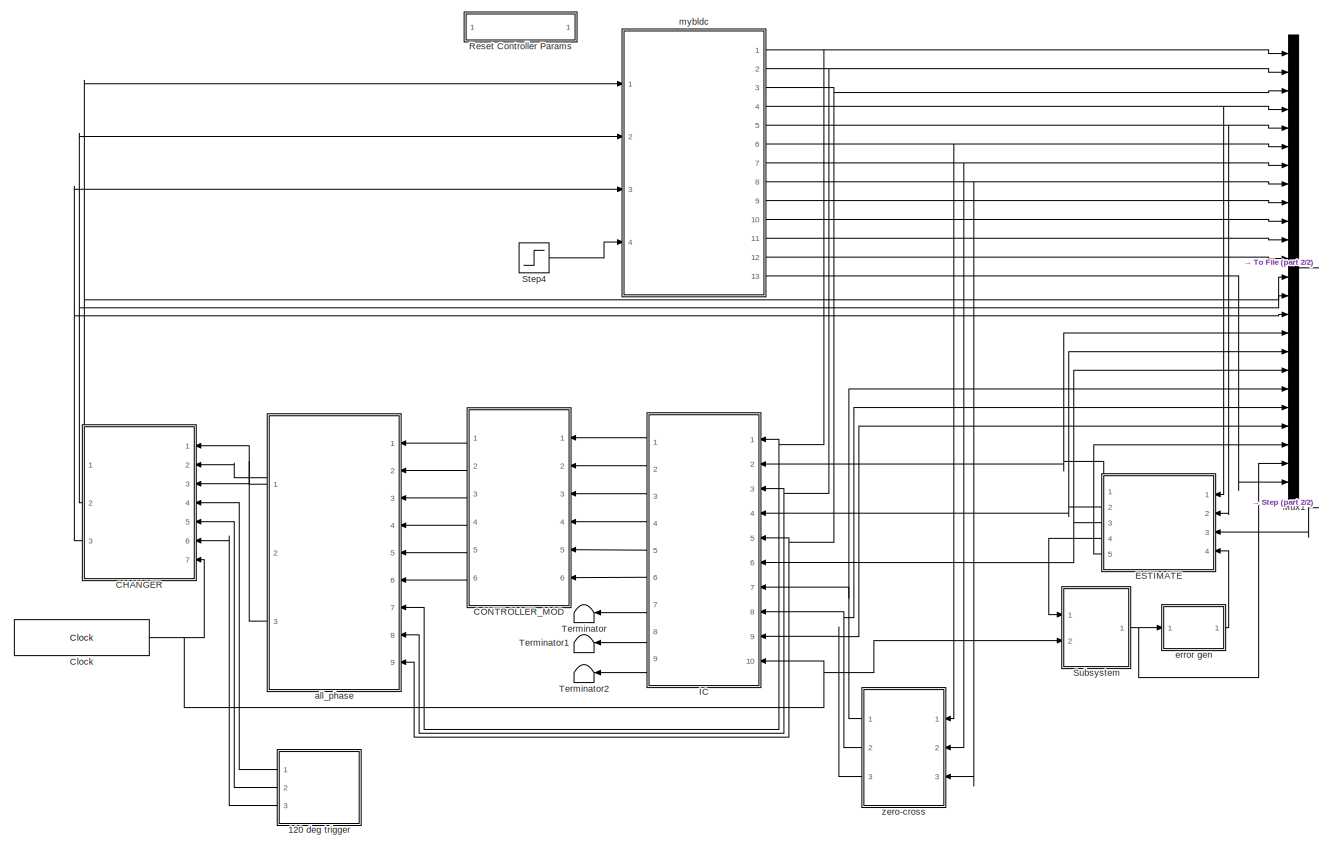
[diagram: root canvas - part 1/2, most of the canvas]
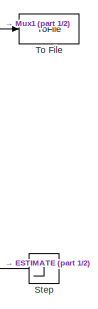
[diagram: root canvas - part 2/2, middle right region]
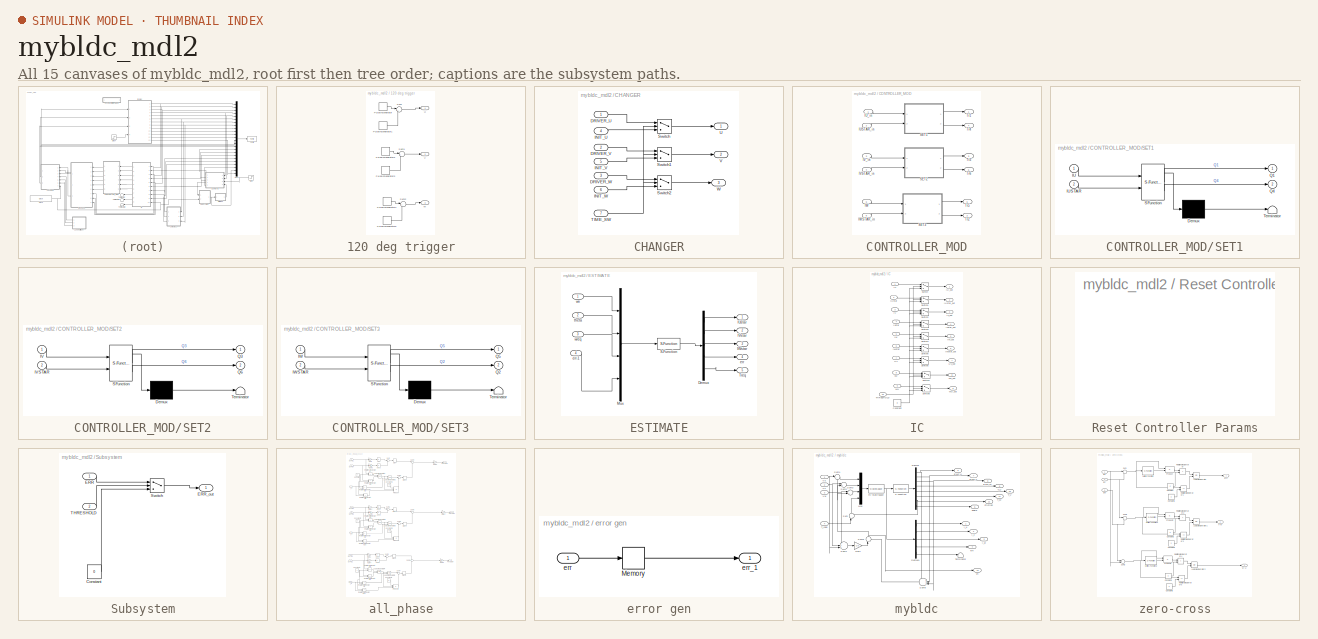
[diagram: thumbnail index - all 15 canvases of the model, root first then tree order]
MODEL mybldc_mdl2
KIND model
CONFIG AbsTol = auto
CONFIG FixedStep = auto
CONFIG MaxStep = auto
CONFIG MinStep = auto
CONFIG RelTol = 1e-3
CONFIG Solver = ode113
CONFIG SolverMode = Auto
CONFIG StartTime = 0.0
CONFIG StopTime = .13
BLOCK [SubSystem] 120 deg trigger
  MaskCallbackString = |
  MaskDescription = This block is used to ramp up the motor.
  MaskEnableString = on,on
  MaskIconFrame = on
  MaskIconOpaque = on
  MaskIconRotate = none
  MaskIconUnits = autoscale
  MaskPromptString = Time period|Excitation Voltage
  MaskStyleString = edit,edit
  MaskToolTipString = on,on
  MaskTunableValueString = on,on
  MaskValueString = 1/50|160
  MaskVarAliasString = ,
  MaskVariables = T=@1;V=@2;
  MaskVisibilityString = on,on
  Ports = [0, 3]
  TreatAsAtomicUnit = off
BLOCK [DiscretePulseGenerator] 120 deg trigger/Pulse\nGenerator
  Amplitude = V
  Period = T
  PhaseDelay = T/3
  PulseType = Time based
  PulseWidth = 200/3
BLOCK [DiscretePulseGenerator] 120 deg trigger/Pulse\nGenerator1
  Amplitude = -2*V
  Period = 2*T
  PhaseDelay = -2*T/3
  PulseType = Time based
  PulseWidth = 100/3
BLOCK [DiscretePulseGenerator] 120 deg trigger/Pulse\nGenerator2
  Amplitude = V
  Period = T
  PulseType = Time based
  PulseWidth = 200/3
BLOCK [DiscretePulseGenerator] 120 deg trigger/Pulse\nGenerator3
  Amplitude = -2*V
  Period = 2*T
  PulseType = Time based
  PulseWidth = 100/3
BLOCK [DiscretePulseGenerator] 120 deg trigger/Pulse\nGenerator4
  Amplitude = V
  Period = T
  PhaseDelay = -T/3
  PulseType = Time based
  PulseWidth = 200/3
BLOCK [DiscretePulseGenerator] 120 deg trigger/Pulse\nGenerator5
  Amplitude = -2*V
  Period = 2*T
  PhaseDelay = 2*T/3
  PulseType = Time based
  PulseWidth = 100/3
BLOCK [Sum] 120 deg trigger/Sum
  IconShape = round
  Inputs = |++
  Ports = [2, 1]
BLOCK [Sum] 120 deg trigger/Sum1
  IconShape = round
  Inputs = |++
  Ports = [2, 1]
BLOCK [Sum] 120 deg trigger/Sum2
  IconShape = round
  Inputs = |++
  Ports = [2, 1]
BLOCK [Outport] 120 deg trigger/U
BLOCK [Outport] 120 deg trigger/V
  Port = 2
BLOCK [Outport] 120 deg trigger/W
  Port = 3
BLOCK [SubSystem] CHANGER
  MaskDescription = This block is used to switch the bldc operation from an open loop to an initial one.\nFill in the amount of time bldc is to be run under open loop condition in the field \n'Threshold time'
  MaskEnableString = on
  MaskHelp = The controller by itself cannot start the motor. This is because the controller operation\nis heavily dependent upon the Back EMF (BEMF) voltages. Initially, the rotor is at\nstandstill, and the back emf voltages have not built up. Thus, the controller does not\nhave any synchronizing information. \n\nTherefore, for some inital time called the 'threshold time' , the motor is 'blindly' ramped \nup....<+324ch>
  MaskIconFrame = on
  MaskIconOpaque = on
  MaskIconRotate = none
  MaskIconUnits = autoscale
  MaskPromptString = Threshold time
  MaskStyleString = edit
  MaskToolTipString = on
  MaskTunableValueString = on
  MaskValueString = 400e-6
  MaskVariables = T=@1;
  MaskVisibilityString = on
  Ports = [7, 3]
  TreatAsAtomicUnit = off
BLOCK [Inport] CHANGER/DRIVER_U
BLOCK [Inport] CHANGER/DRIVER_V
  Port = 2
BLOCK [Inport] CHANGER/DRIVER_W
  Port = 3
BLOCK [Inport] CHANGER/INIT_U
  Port = 4
BLOCK [Inport] CHANGER/INIT_V
  Port = 5
BLOCK [Inport] CHANGER/INIT_W
  Port = 6
BLOCK [Switch] CHANGER/Switch
  Criteria = u2 > Threshold
  InputSameDT = off
  Threshold = T
BLOCK [Switch] CHANGER/Switch1
  Criteria = u2 > Threshold
  InputSameDT = off
  Threshold = T
BLOCK [Switch] CHANGER/Switch2
  Criteria = u2 > Threshold
  InputSameDT = off
  Threshold = T
BLOCK [Inport] CHANGER/TIME_SW
  Port = 7
BLOCK [Outport] CHANGER/U
BLOCK [Outport] CHANGER/V
  Port = 2
BLOCK [Outport] CHANGER/W
  Port = 3
BLOCK [SubSystem] CONTROLLER_MOD
  Ports = [6, 6]
  TreatAsAtomicUnit = off
BLOCK [Inport] CONTROLLER_MOD/IUSTAR_in
  Port = 2
BLOCK [Inport] CONTROLLER_MOD/IU_in
BLOCK [Inport] CONTROLLER_MOD/IVSTAR_in
  Port = 4
BLOCK [Inport] CONTROLLER_MOD/IV_in
  Port = 3
BLOCK [Inport] CONTROLLER_MOD/IW
  Port = 5
BLOCK [Inport] CONTROLLER_MOD/IWSTAR_in
  Port = 6
BLOCK [SubSystem] CONTROLLER_MOD/SET1
  MaskDescription = Stateflow diagram
  MaskDisplay = plot(sf('Private','sfblk','xIcon'),sf('Private','sfblk','yIcon'));text(0.5,0,sf('Private', 'sfblk', 'tIcon'),'HorizontalAl','Center','VerticalAl','Bottom');
  MaskIconFrame = off
  MaskIconOpaque = off
  MaskIconRotate = none
  MaskIconUnits = autoscale
  MaskSelfModifiable = on
  MaskType = Stateflow
  Ports = [2, 2]
  TreatAsAtomicUnit = off
BLOCK [Demux] CONTROLLER_MOD/SET1/ Demux 
  Outputs = 1
  Ports = [1, 1]
BLOCK [S-Function] CONTROLLER_MOD/SET1/ SFunction 
  FunctionName = sf_sfun
  PortCounts = [2 3]
  Ports = [2, 3]
  Tag = Stateflow S-Function mybldc_mdl2 1
BLOCK [Terminator] CONTROLLER_MOD/SET1/ Terminator 
BLOCK [Inport] CONTROLLER_MOD/SET1/IU
  PortDimensions = 1
BLOCK [Inport] CONTROLLER_MOD/SET1/IUSTAR
  Port = 2
  PortDimensions = 1
BLOCK [Outport] CONTROLLER_MOD/SET1/Q1
BLOCK [Outport] CONTROLLER_MOD/SET1/Q4
  Port = 2
BLOCK [SubSystem] CONTROLLER_MOD/SET2
  MaskDescription = Stateflow diagram
  MaskDisplay = plot(sf('Private','sfblk','xIcon'),sf('Private','sfblk','yIcon'));text(0.5,0,sf('Private', 'sfblk', 'tIcon'),'HorizontalAl','Center','VerticalAl','Bottom');
  MaskIconFrame = off
  MaskIconOpaque = off
  MaskIconRotate = none
  MaskIconUnits = autoscale
  MaskSelfModifiable = on
  MaskType = Stateflow
  Ports = [2, 2]
  TreatAsAtomicUnit = off
BLOCK [Demux] CONTROLLER_MOD/SET2/ Demux 
  Outputs = 1
  Ports = [1, 1]
BLOCK [S-Function] CONTROLLER_MOD/SET2/ SFunction 
  FunctionName = sf_sfun
  PortCounts = [2 3]
  Ports = [2, 3]
  Tag = Stateflow S-Function mybldc_mdl2 2
BLOCK [Terminator] CONTROLLER_MOD/SET2/ Terminator 
BLOCK [Inport] CONTROLLER_MOD/SET2/IV
  PortDimensions = 1
BLOCK [Inport] CONTROLLER_MOD/SET2/IVSTAR
  Port = 2
  PortDimensions = 1
BLOCK [Outport] CONTROLLER_MOD/SET2/Q3
BLOCK [Outport] CONTROLLER_MOD/SET2/Q6
  Port = 2
BLOCK [SubSystem] CONTROLLER_MOD/SET3
  MaskDescription = Stateflow diagram
  MaskDisplay = plot(sf('Private','sfblk','xIcon'),sf('Private','sfblk','yIcon'));text(0.5,0,sf('Private', 'sfblk', 'tIcon'),'HorizontalAl','Center','VerticalAl','Bottom');
  MaskIconFrame = off
  MaskIconOpaque = off
  MaskIconRotate = none
  MaskIconUnits = autoscale
  MaskSelfModifiable = on
  MaskType = Stateflow
  Ports = [2, 2]
  TreatAsAtomicUnit = off
BLOCK [Demux] CONTROLLER_MOD/SET3/ Demux 
  Outputs = 1
  Ports = [1, 1]
BLOCK [S-Function] CONTROLLER_MOD/SET3/ SFunction 
  FunctionName = sf_sfun
  PortCounts = [2 3]
  Ports = [2, 3]
  Tag = Stateflow S-Function mybldc_mdl2 3
BLOCK [Terminator] CONTROLLER_MOD/SET3/ Terminator 
BLOCK [Inport] CONTROLLER_MOD/SET3/IW
  PortDimensions = 1
BLOCK [Inport] CONTROLLER_MOD/SET3/IWSTAR
  Port = 2
  PortDimensions = 1
BLOCK [Outport] CONTROLLER_MOD/SET3/Q2
  Port = 2
BLOCK [Outport] CONTROLLER_MOD/SET3/Q5
BLOCK [Outport] CONTROLLER_MOD/Tr1
BLOCK [Outport] CONTROLLER_MOD/Tr2
  Port = 2
BLOCK [Outport] CONTROLLER_MOD/Tr3
  Port = 3
BLOCK [Outport] CONTROLLER_MOD/Tr4
  Port = 4
BLOCK [Outport] CONTROLLER_MOD/Tr5
  Port = 5
BLOCK [Outport] CONTROLLER_MOD/Tr6
  Port = 6
BLOCK [Clock] Clock
  Decimation = 1
  DisplayTime = on
BLOCK [SubSystem] ESTIMATE
  MaskCallbackString = ||||||||||
  MaskDescription = This block calculates the required calue of current in all the three phases depending upon the speed requirement\n\nFor good results, phase difference should be kept at 0
  MaskEnableString = on,on,on,on,on,on,on,on,on,on,on
  MaskHelp = The estimation block calculates the currents that should be flowing in the individual\nphases as per the speed command and/or the load torque requirements. For this a \nPID controller is used. A series of transformations is applied in the m file s fuction \n'calc_core.m' and then commands are calculated. A modified version of the Park's \nTransform is used. The signals are then fed to the controll...<+107ch>
  MaskIconFrame = on
  MaskIconOpaque = on
  MaskIconRotate = none
  MaskIconUnits = autoscale
  MaskPromptString = Number of turns per phase|Maximum value of magnetic field intensity|moment of inertia|viscous friction|Rotor radius|Rotor length|phase difference between current and torque|Proportionality constant|Integral constant|differential constant|rated base current
  MaskStyleString = edit,edit,edit,edit,edit,edit,edit,edit,edit,edit,edit
  MaskToolTipString = on,on,on,on,on,on,on,on,on,on,on
  MaskTunableValueString = on,on,on,on,on,on,on,on,on,on,on
  MaskValueString = 100|49/60|0.0002|0.002|0.02|0.03|0|50000|500000|5|34
  MaskVarAliasString = ,,,,,,,,,,
  MaskVariables = N=@1;BM=@2;J=@3;DF=@4;Rr=@5;Rl=@6;delta=@7;KP=@8;KI=@9;KD=@10;basecurr=@11;
  MaskVisibilityString = on,on,on,on,on,on,on,on,on,on,on
  Ports = [4, 5]
  TreatAsAtomicUnit = off
BLOCK [Demux] ESTIMATE/Demux
  Outputs = 5
  Ports = [1, 5]
BLOCK [Outport] ESTIMATE/IUstar
BLOCK [Outport] ESTIMATE/IVstar
  Port = 2
BLOCK [Outport] ESTIMATE/IWstar
  Port = 3
BLOCK [Mux] ESTIMATE/Mux
  DisplayOption = bar
  Ports = [4, 1]
BLOCK [S-Function] ESTIMATE/S-Function
  FunctionName = calc_core
  Parameters = J,DF,N,BM,Rr,Rl,delta,KP,KI,KD,basecurr
  Ports = [1, 1]
BLOCK [Outport] ESTIMATE/Treq
  Port = 5
BLOCK [Outport] ESTIMATE/err
  Port = 4
BLOCK [Inport] ESTIMATE/err-1
  Port = 4
BLOCK [Inport] ESTIMATE/theta
  Port = 2
BLOCK [Inport] ESTIMATE/wn
BLOCK [Inport] ESTIMATE/wreq
  Port = 3
BLOCK [SubSystem] IC
  MaskDescription = The block is just used to hold the FSM in CONTROLLER_MOD block to its\ninital states. The value in the field 'Threshold' determines how long the block \nwill keep the CONTROLLER_MOD block locked to its initial position.
  MaskEnableString = on
  MaskHelp = Intially, when the motor is being ramped to build up the required Back emf voltages,\nit is important that the FSMs in the CONTROLLER_MOD block do not leave their \ninitial states. Therefore, this block is used to keep the FSMs in the CONTROLLER_MOD \nblock locked into their initial states. The time for which this control is exercised is\ndetermined by the time value entered in 'Threshold' field.\...<+111ch>
  MaskIconFrame = on
  MaskIconOpaque = on
  MaskIconRotate = none
  MaskIconUnits = autoscale
  MaskPromptString = Threshold
  MaskStyleString = edit
  MaskToolTipString = on
  MaskTunableValueString = on
  MaskValueString = 400e-6
  MaskVariables = T=@1;
  MaskVisibilityString = on
  Ports = [10, 9]
  TreatAsAtomicUnit = off
BLOCK [Constant] IC/Constant
  Value = 0
BLOCK [Inport] IC/IU
BLOCK [Outport] IC/IU_out
BLOCK [Inport] IC/IUstar
  Port = 2
BLOCK [Outport] IC/IUstar_out
  Port = 2
BLOCK [Inport] IC/IV
  Port = 3
BLOCK [Outport] IC/IV_out
  Port = 3
BLOCK [Inport] IC/IVstar
  Port = 4
BLOCK [Outport] IC/IVstar_out
  Port = 4
BLOCK [Inport] IC/IW
  Port = 5
BLOCK [Outport] IC/IW_out
  Port = 5
BLOCK [Inport] IC/IWstar
  Port = 6
BLOCK [Outport] IC/IWstar_out
  Port = 6
BLOCK [Switch] IC/Switch
  InputSameDT = off
  Threshold = T
BLOCK [Switch] IC/Switch1
  InputSameDT = off
  Threshold = T
BLOCK [Switch] IC/Switch2
  InputSameDT = off
  Threshold = T
BLOCK [Switch] IC/Switch3
  InputSameDT = off
  Threshold = T
BLOCK [Switch] IC/Switch4
  InputSameDT = off
  Threshold = T
BLOCK [Switch] IC/Switch5
  InputSameDT = off
  Threshold = T
BLOCK [Switch] IC/Switch6
  InputSameDT = off
  Threshold = T
BLOCK [Switch] IC/Switch7
  InputSameDT = off
  Threshold = T
BLOCK [Switch] IC/Switch8
  InputSameDT = off
  Threshold = T
BLOCK [Inport] IC/THRESHOLD
  Port = 10
BLOCK [Inport] IC/UV
  Port = 7
BLOCK [Outport] IC/UV_out
  Port = 7
BLOCK [Inport] IC/VW
  Port = 8
BLOCK [Outport] IC/VW_out
  Port = 8
BLOCK [Inport] IC/WU
  Port = 9
BLOCK [Outport] IC/WU_out
  Port = 9
BLOCK [Mux] Mux1
  DisplayOption = bar
  Inputs = 24
  Ports = [24, 1]
BLOCK [SubSystem] Reset Controller Params
  MaskDisplay = disp('Reset Controller')
  MaskIconFrame = on
  MaskIconOpaque = on
  MaskIconRotate = none
  MaskIconUnits = autoscale
  OpenFcn = mybldc2([],[],[],'reset',find_system(get_param(gcs,'Handle'),'LookUnderMasks','all','Tag','PPC'));
  Ports = []
  TreatAsAtomicUnit = off
BLOCK [Step] Step
  After = 75
  SampleTime = 0
  Time = 0.01
BLOCK [Step] Step4
  After = 0
  SampleTime = 0
  Time = 0.05
BLOCK [SubSystem] Subsystem
  MaskEnableString = on
  MaskIconFrame = on
  MaskIconOpaque = on
  MaskIconRotate = none
  MaskIconUnits = autoscale
  MaskPromptString = Threshold
  MaskStyleString = edit
  MaskToolTipString = on
  MaskTunableValueString = on
  MaskValueString = 400e-6
  MaskVariables = T=@1;
  MaskVisibilityString = on
  Ports = [2, 1]
  TreatAsAtomicUnit = off
BLOCK [Constant] Subsystem/Constant
  Value = 0
BLOCK [Inport] Subsystem/ERR
BLOCK [Outport] Subsystem/ERR_out
BLOCK [Switch] Subsystem/Switch
  InputSameDT = off
  Threshold = T
BLOCK [Inport] Subsystem/THRESHOLD
  Port = 2
BLOCK [Terminator] Terminator
BLOCK [Terminator] Terminator1
BLOCK [Terminator] Terminator2
BLOCK [ToFile] To File
  Filename = result
  MatrixName = res
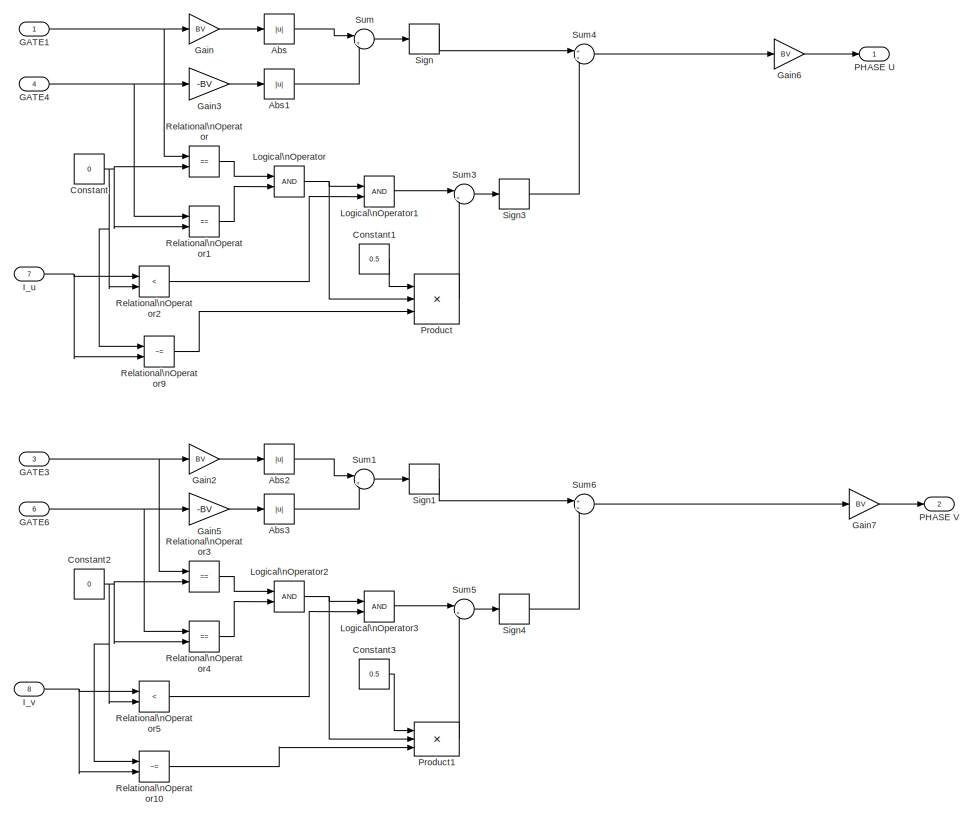
[diagram: all_phase - part 1/2, full width, middle band]
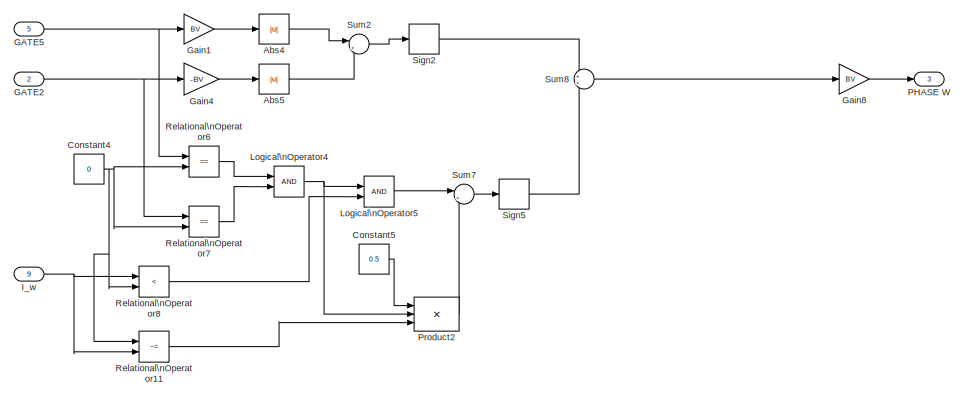
[diagram: all_phase - part 2/2, full width, bottom band]
BLOCK [SubSystem] all_phase
  MaskDescription = This is an inverter. Double click the block to enter the battery voltage
  MaskEnableString = on
  MaskHelp = The voltage source that is used is bipolar. That is if a value say 100 is entered then a split supply \nof +100 and -100 volts is assumed with respect to ground (zero volts)
  MaskIconFrame = on
  MaskIconOpaque = on
  MaskIconRotate = none
  MaskIconUnits = autoscale
  MaskPromptString = Battery voltage for excitation
  MaskStyleString = edit
  MaskToolTipString = on
  MaskTunableValueString = on
  MaskValueString = 160
  MaskVariables = BV=@1;
  MaskVisibilityString = on
  Ports = [9, 3]
  TreatAsAtomicUnit = off
BLOCK [Abs] all_phase/Abs
BLOCK [Abs] all_phase/Abs1
BLOCK [Abs] all_phase/Abs2
BLOCK [Abs] all_phase/Abs3
BLOCK [Abs] all_phase/Abs4
BLOCK [Abs] all_phase/Abs5
BLOCK [Constant] all_phase/Constant
  Value = 0
BLOCK [Constant] all_phase/Constant1
  Value = 0.5
BLOCK [Constant] all_phase/Constant2
  Value = 0
BLOCK [Constant] all_phase/Constant3
  Value = 0.5
BLOCK [Constant] all_phase/Constant4
  Value = 0
BLOCK [Constant] all_phase/Constant5
  Value = 0.5
BLOCK [Inport] all_phase/GATE1
BLOCK [Inport] all_phase/GATE2
  Port = 2
BLOCK [Inport] all_phase/GATE3
  Port = 3
BLOCK [Inport] all_phase/GATE4
  Port = 4
BLOCK [Inport] all_phase/GATE5
  Port = 5
BLOCK [Inport] all_phase/GATE6
  Port = 6
BLOCK [Gain] all_phase/Gain
  Gain = BV
BLOCK [Gain] all_phase/Gain1
  Gain = BV
BLOCK [Gain] all_phase/Gain2
  Gain = BV
BLOCK [Gain] all_phase/Gain3
  Gain = -BV
BLOCK [Gain] all_phase/Gain4
  Gain = -BV
BLOCK [Gain] all_phase/Gain5
  Gain = -BV
BLOCK [Gain] all_phase/Gain6
  Gain = BV
BLOCK [Gain] all_phase/Gain7
  Gain = BV
BLOCK [Gain] all_phase/Gain8
  Gain = BV
BLOCK [Inport] all_phase/I_u
  Port = 7
BLOCK [Inport] all_phase/I_v
  Port = 8
BLOCK [Inport] all_phase/I_w
  Port = 9
BLOCK [Logic] all_phase/Logical\nOperator
  AllPortsSameDT = off
  Ports = [2, 1]
BLOCK [Logic] all_phase/Logical\nOperator1
  AllPortsSameDT = off
  Ports = [2, 1]
BLOCK [Logic] all_phase/Logical\nOperator2
  AllPortsSameDT = off
  Ports = [2, 1]
BLOCK [Logic] all_phase/Logical\nOperator3
  AllPortsSameDT = off
  Ports = [2, 1]
BLOCK [Logic] all_phase/Logical\nOperator4
  AllPortsSameDT = off
  Ports = [2, 1]
BLOCK [Logic] all_phase/Logical\nOperator5
  AllPortsSameDT = off
  Ports = [2, 1]
BLOCK [Outport] all_phase/PHASE U
BLOCK [Outport] all_phase/PHASE V
  Port = 2
BLOCK [Outport] all_phase/PHASE W
  Port = 3
BLOCK [Product] all_phase/Product
  InputSameDT = off
  Inputs = 3
  Ports = [3, 1]
BLOCK [Product] all_phase/Product1
  InputSameDT = off
  Inputs = 3
  Ports = [3, 1]
BLOCK [Product] all_phase/Product2
  InputSameDT = off
  Inputs = 3
  Ports = [3, 1]
BLOCK [RelationalOperator] all_phase/Relational\nOperator
  InputSameDT = off
  Operator = ==
BLOCK [RelationalOperator] all_phase/Relational\nOperator1
  InputSameDT = off
  Operator = ==
BLOCK [RelationalOperator] all_phase/Relational\nOperator10
  InputSameDT = off
  Operator = ~=
BLOCK [RelationalOperator] all_phase/Relational\nOperator11
  InputSameDT = off
  Operator = ~=
BLOCK [RelationalOperator] all_phase/Relational\nOperator2
  InputSameDT = off
  Operator = <
BLOCK [RelationalOperator] all_phase/Relational\nOperator3
  InputSameDT = off
  Operator = ==
BLOCK [RelationalOperator] all_phase/Relational\nOperator4
  InputSameDT = off
  Operator = ==
BLOCK [RelationalOperator] all_phase/Relational\nOperator5
  InputSameDT = off
  Operator = <
BLOCK [RelationalOperator] all_phase/Relational\nOperator6
  InputSameDT = off
  Operator = ==
BLOCK [RelationalOperator] all_phase/Relational\nOperator7
  InputSameDT = off
  Operator = ==
BLOCK [RelationalOperator] all_phase/Relational\nOperator8
  InputSameDT = off
  Operator = <
BLOCK [RelationalOperator] all_phase/Relational\nOperator9
  InputSameDT = off
  Operator = ~=
BLOCK [Signum] all_phase/Sign
BLOCK [Signum] all_phase/Sign1
BLOCK [Signum] all_phase/Sign2
BLOCK [Signum] all_phase/Sign3
BLOCK [Signum] all_phase/Sign4
BLOCK [Signum] all_phase/Sign5
BLOCK [Sum] all_phase/Sum
  IconShape = round
  Inputs = |+-
  Ports = [2, 1]
BLOCK [Sum] all_phase/Sum1
  IconShape = round
  Inputs = |+-
  Ports = [2, 1]
BLOCK [Sum] all_phase/Sum2
  IconShape = round
  Inputs = |+-
  Ports = [2, 1]
BLOCK [Sum] all_phase/Sum3
  IconShape = round
  Inputs = |+-
  Ports = [2, 1]
BLOCK [Sum] all_phase/Sum4
  IconShape = round
  Ports = [2, 1]
BLOCK [Sum] all_phase/Sum5
  IconShape = round
  Inputs = |+-
  Ports = [2, 1]
BLOCK [Sum] all_phase/Sum6
  IconShape = round
  Ports = [2, 1]
BLOCK [Sum] all_phase/Sum7
  IconShape = round
  Inputs = |+-
  Ports = [2, 1]
BLOCK [Sum] all_phase/Sum8
  IconShape = round
  Ports = [2, 1]
BLOCK [SubSystem] error gen
  Ports = [1, 1]
  TreatAsAtomicUnit = off
BLOCK [Memory] error gen/Memory
  InheritSampleTime = on
BLOCK [Inport] error gen/err
BLOCK [Outport] error gen/err_1
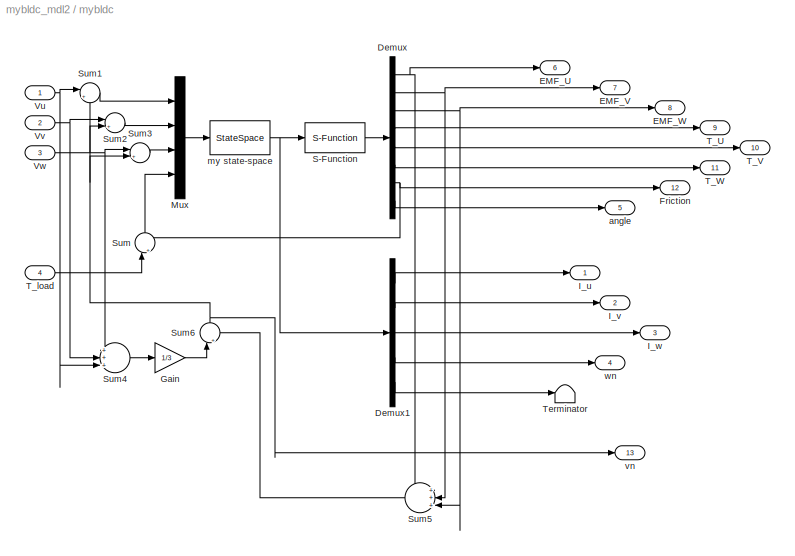
BLOCK [SubSystem] mybldc
  MaskIconFrame = on
  MaskIconOpaque = on
  MaskIconRotate = none
  MaskIconUnits = autoscale
  Ports = [4, 13]
  TreatAsAtomicUnit = off
BLOCK [Demux] mybldc/Demux
  Outputs = 8
  Ports = [1, 8]
BLOCK [Demux] mybldc/Demux1
  Outputs = 5
  Ports = [1, 5]
BLOCK [Outport] mybldc/EMF_U
  Port = 6
BLOCK [Outport] mybldc/EMF_V
  Port = 7
BLOCK [Outport] mybldc/EMF_W
  Port = 8
BLOCK [Outport] mybldc/Friction
  Port = 12
BLOCK [Gain] mybldc/Gain
  Gain = 1/3
BLOCK [Outport] mybldc/I_u
BLOCK [Outport] mybldc/I_v
  Port = 2
BLOCK [Outport] mybldc/I_w
  Port = 3
BLOCK [Mux] mybldc/Mux
  DisplayOption = bar
  Ports = [4, 1]
BLOCK [S-Function] mybldc/S-Function
  FunctionName = MYBLDC2
  MaskCallbackString = |||||||||||
  MaskDescription = The blovk post- processes the state space block outputs
  MaskEnableString = on,on,on,on,on,on,on,on,on,on,on,on
  MaskHelp = Many other variables like the back emf , normalised angles (to 2*pi) and friction are \ncalculated here. The block is essentially an m file S function 'mybldc2.m' wherein\nthe flux distribution has been written as a look up table and the values are calculated \nusing that look up table. For math, refer to the manual.
  MaskIconFrame = on
  MaskIconOpaque = on
  MaskIconRotate = none
  MaskIconUnits = autoscale
  MaskPromptString = Number of turns per phase|Resistance per phase|self inductance per phase|mutual inductace per phase|Maximum value of flux density|Rotor length|rotor radius|value of viscous friction|moment of inertia|Total number of poles|starting value of coulomb friction|Static friction
  MaskStyleString = edit,edit,edit,edit,edit,edit,edit,edit,edit,edit,edit,edit
  MaskToolTipString = on,on,on,on,on,on,on,on,on,on,on,on
  MaskTunableValueString = on,on,on,on,on,on,on,on,on,on,on,on
  MaskValueString = 100|0.7|2.72e-3|-1.5e-3|49/60|0.03|0.02|0.002|0.0002|4|0.2*0.089|0.089
  MaskVarAliasString = ,,,,,,,,,,,
  MaskVariables = N=@1;R=@2;L=@3;M=@4;BM=@5;Rl=@6;Rr=@7;DF=@8;J=@9;P=@10;Fs=@11;F0=@12;
  MaskVisibilityString = on,on,on,on,on,on,on,on,on,on,on,on
  Parameters = N,R,L,M,BM,Rl,Rr,DF,J,P,F0,Fs
  Ports = [1, 1]
BLOCK [Sum] mybldc/Sum
  IconShape = round
  Inputs = |++
  Ports = [2, 1]
BLOCK [Sum] mybldc/Sum1
  IconShape = round
  Inputs = |+-
  Ports = [2, 1]
BLOCK [Sum] mybldc/Sum2
  IconShape = round
  Inputs = |+-
  Ports = [2, 1]
BLOCK [Sum] mybldc/Sum3
  IconShape = round
  Inputs = |+-
  Ports = [2, 1]
BLOCK [Sum] mybldc/Sum4
  IconShape = round
  Inputs = +++
  Ports = [3, 1]
BLOCK [Sum] mybldc/Sum5
  IconShape = round
  Inputs = +++
  Ports = [3, 1]
BLOCK [Sum] mybldc/Sum6
  IconShape = round
  Inputs = |+-
  Ports = [2, 1]
BLOCK [Outport] mybldc/T_U
  Port = 9
BLOCK [Outport] mybldc/T_V
  Port = 10
BLOCK [Outport] mybldc/T_W
  Port = 11
BLOCK [Inport] mybldc/T_load
  Port = 4
BLOCK [Terminator] mybldc/Terminator
BLOCK [Inport] mybldc/Vu
BLOCK [Inport] mybldc/Vv
  Port = 2
BLOCK [Inport] mybldc/Vw
  Port = 3
BLOCK [Outport] mybldc/angle
  Port = 5
BLOCK [StateSpace] mybldc/my state-space
  A = [ -1.658768e+002  0 0 1.604892e-016 0; 0  -1.658768e+002 0 1.161137e+001 0; 0  0 -1.658768e+002 -1.161137e+001 0; -3.386321e-015  -245 245 -10 0; 0  0 0 2 0]
  B = [236.96 0 0 0; 0 236.96 0 0; 0 0 236.96 0; 0 0 0 -5000; 0 0 0 0]
  C = [1 0 0 0 0;0 1 0 0 0;0 0 1 0 0; 0 0 0 1 0;0 0 0 0 1]
  D = [0 0 0 0 ; 0 0 0 0; 0 0 0 0; 0 0 0 0; 0 0 0 0]
  X0 = [0 0 0 0 0]
BLOCK [Outport] mybldc/vn
  Port = 13
BLOCK [Outport] mybldc/wn
  Port = 4
BLOCK [SubSystem] zero-cross
  MaskDescription = The block detects the zero crossing of the inputs. For accurate results use the  rising edge only.
  MaskHelp = The block determines t he zero crossing of (U-V) BEMF; (V-W) BEMF; (W-U) BEMFs.\nIt may be noted that SIMULINK determines its own step size (if allowed to ) and therefore\nexplicit zeros may not be reported in the solution. For example, the solution at consecutive\ntime steps may be -0.9 -0.95 +0.01...Hence there is an 'implied' zero crossing. The \nSimulator was initially written in R12 where zer...<+168ch>
  MaskIconFrame = on
  MaskIconOpaque = on
  MaskIconRotate = none
  MaskIconUnits = autoscale
  Ports = [3, 3]
  TreatAsAtomicUnit = off
BLOCK [Constant] zero-cross/Constant
  Value = 0
BLOCK [Constant] zero-cross/Constant1
  Value = 0
BLOCK [Constant] zero-cross/Constant2
  Value = 0
BLOCK [Constant] zero-cross/Constant3
  Value = 0
BLOCK [Constant] zero-cross/Constant4
  Value = 0
BLOCK [Constant] zero-cross/Constant5
  Value = 0
BLOCK [Inport] zero-cross/EU
BLOCK [Inport] zero-cross/EV
  Port = 2
BLOCK [Inport] zero-cross/EW
  Port = 3
BLOCK [Logic] zero-cross/Logical\nOperator
  Operator = OR
  Ports = [2, 1]
BLOCK [Logic] zero-cross/Logical\nOperator1
  Operator = OR
  Ports = [2, 1]
BLOCK [Logic] zero-cross/Logical\nOperator2
  Operator = OR
  Ports = [2, 1]
BLOCK [S-Function] zero-cross/M-file S-Function
  FunctionName = delay
  MaskDescription = This is a M-file S-function which demonstrates how toimplement an unit delay.
  MaskDisplay = disp('Unit delay')
  MaskIconFrame = on
  MaskIconOpaque = on
  MaskIconRotate = none
  MaskIconUnits = autoscale
  MaskType = S-function: sfun_dsc2
  Ports = [1, 1]
BLOCK [S-Function] zero-cross/M-file S-Function1
  FunctionName = delay
  MaskDescription = This is a M-file S-function which demonstrates how toimplement an unit delay.
  MaskDisplay = disp('Unit delay')
  MaskIconFrame = on
  MaskIconOpaque = on
  MaskIconRotate = none
  MaskIconUnits = autoscale
  MaskType = S-function: sfun_dsc2
  Ports = [1, 1]
BLOCK [S-Function] zero-cross/M-file S-Function2
  FunctionName = delay
  MaskDescription = This is a M-file S-function which demonstrates how toimplement an unit delay.
  MaskDisplay = disp('Unit delay')
  MaskIconFrame = on
  MaskIconOpaque = on
  MaskIconRotate = none
  MaskIconUnits = autoscale
  MaskType = S-function: sfun_dsc2
  Ports = [1, 1]
BLOCK [Product] zero-cross/Product
  Ports = [2, 1]
BLOCK [Product] zero-cross/Product1
  Ports = [2, 1]
BLOCK [Product] zero-cross/Product2
  Ports = [2, 1]
BLOCK [RelationalOperator] zero-cross/Relational\nOperator
  Operator = <
BLOCK [RelationalOperator] zero-cross/Relational\nOperator1
  Operator = ==
BLOCK [RelationalOperator] zero-cross/Relational\nOperator2
  Operator = <
BLOCK [RelationalOperator] zero-cross/Relational\nOperator3
  Operator = ==
BLOCK [RelationalOperator] zero-cross/Relational\nOperator4
  Operator = <
BLOCK [RelationalOperator] zero-cross/Relational\nOperator5
  Operator = ==
BLOCK [Sum] zero-cross/Sum
  IconShape = round
  Inputs = |+-
  Ports = [2, 1]
BLOCK [Sum] zero-cross/Sum1
  IconShape = round
  Inputs = |+-
  Ports = [2, 1]
BLOCK [Sum] zero-cross/Sum2
  IconShape = round
  Inputs = |+-
  Ports = [2, 1]
BLOCK [Outport] zero-cross/U-V
BLOCK [Outport] zero-cross/V-W
  Port = 2
BLOCK [Outport] zero-cross/W-U
  Port = 3
LINE 120 deg trigger/Pulse\nGenerator1:1 -> 120 deg trigger/Sum:2
LINE 120 deg trigger/Pulse\nGenerator2:1 -> 120 deg trigger/Sum1:1
LINE 120 deg trigger/Pulse\nGenerator3:1 -> 120 deg trigger/Sum1:2
LINE 120 deg trigger/Pulse\nGenerator4:1 -> 120 deg trigger/Sum2:1
LINE 120 deg trigger/Pulse\nGenerator5:1 -> 120 deg trigger/Sum2:2
LINE 120 deg trigger/Pulse\nGenerator:1 -> 120 deg trigger/Sum:1
LINE 120 deg trigger/Sum1:1 -> 120 deg trigger/V:1
LINE 120 deg trigger/Sum2:1 -> 120 deg trigger/W:1
LINE 120 deg trigger/Sum:1 -> 120 deg trigger/U:1
LINE 120 deg trigger:1 -> CHANGER:4
LINE 120 deg trigger:2 -> CHANGER:5
LINE 120 deg trigger:3 -> CHANGER:6
LINE CHANGER/DRIVER_U:1 -> CHANGER/Switch:1
LINE CHANGER/DRIVER_V:1 -> CHANGER/Switch1:1
LINE CHANGER/DRIVER_W:1 -> CHANGER/Switch2:1
LINE CHANGER/INIT_U:1 -> CHANGER/Switch:3
LINE CHANGER/INIT_V:1 -> CHANGER/Switch1:3
LINE CHANGER/INIT_W:1 -> CHANGER/Switch2:3
LINE CHANGER/Switch1:1 -> CHANGER/V:1
LINE CHANGER/Switch2:1 -> CHANGER/W:1
LINE CHANGER/Switch:1 -> CHANGER/U:1
NET CHANGER/TIME_SW:1 -> CHANGER/Switch1:2, CHANGER/Switch2:2, CHANGER/Switch:2
NET CHANGER:1 -> Mux1:13, mybldc:1
NET CHANGER:2 -> Mux1:14, mybldc:2
NET CHANGER:3 -> Mux1:15, mybldc:3
LINE CONTROLLER_MOD/IUSTAR_in:1 -> CONTROLLER_MOD/SET1:2
LINE CONTROLLER_MOD/IU_in:1 -> CONTROLLER_MOD/SET1:1
LINE CONTROLLER_MOD/IVSTAR_in:1 -> CONTROLLER_MOD/SET2:2
LINE CONTROLLER_MOD/IV_in:1 -> CONTROLLER_MOD/SET2:1
LINE CONTROLLER_MOD/IW:1 -> CONTROLLER_MOD/SET3:1
LINE CONTROLLER_MOD/IWSTAR_in:1 -> CONTROLLER_MOD/SET3:2
LINE CONTROLLER_MOD/SET1/ Demux :1 -> CONTROLLER_MOD/SET1/ Terminator :1
LINE CONTROLLER_MOD/SET1/ SFunction :1 -> CONTROLLER_MOD/SET1/ Demux :1
LINE CONTROLLER_MOD/SET1/ SFunction :2 -> CONTROLLER_MOD/SET1/Q1:1
LINE CONTROLLER_MOD/SET1/ SFunction :3 -> CONTROLLER_MOD/SET1/Q4:1
LINE CONTROLLER_MOD/SET1/IU:1 -> CONTROLLER_MOD/SET1/ SFunction :1
LINE CONTROLLER_MOD/SET1/IUSTAR:1 -> CONTROLLER_MOD/SET1/ SFunction :2
LINE CONTROLLER_MOD/SET1:1 -> CONTROLLER_MOD/Tr1:1
LINE CONTROLLER_MOD/SET1:2 -> CONTROLLER_MOD/Tr4:1
LINE CONTROLLER_MOD/SET2/ Demux :1 -> CONTROLLER_MOD/SET2/ Terminator :1
LINE CONTROLLER_MOD/SET2/ SFunction :1 -> CONTROLLER_MOD/SET2/ Demux :1
LINE CONTROLLER_MOD/SET2/ SFunction :2 -> CONTROLLER_MOD/SET2/Q3:1
LINE CONTROLLER_MOD/SET2/ SFunction :3 -> CONTROLLER_MOD/SET2/Q6:1
LINE CONTROLLER_MOD/SET2/IV:1 -> CONTROLLER_MOD/SET2/ SFunction :1
LINE CONTROLLER_MOD/SET2/IVSTAR:1 -> CONTROLLER_MOD/SET2/ SFunction :2
LINE CONTROLLER_MOD/SET2:1 -> CONTROLLER_MOD/Tr3:1
LINE CONTROLLER_MOD/SET2:2 -> CONTROLLER_MOD/Tr6:1
LINE CONTROLLER_MOD/SET3/ Demux :1 -> CONTROLLER_MOD/SET3/ Terminator :1
LINE CONTROLLER_MOD/SET3/ SFunction :1 -> CONTROLLER_MOD/SET3/ Demux :1
LINE CONTROLLER_MOD/SET3/ SFunction :2 -> CONTROLLER_MOD/SET3/Q5:1
LINE CONTROLLER_MOD/SET3/ SFunction :3 -> CONTROLLER_MOD/SET3/Q2:1
LINE CONTROLLER_MOD/SET3/IW:1 -> CONTROLLER_MOD/SET3/ SFunction :1
LINE CONTROLLER_MOD/SET3/IWSTAR:1 -> CONTROLLER_MOD/SET3/ SFunction :2
LINE CONTROLLER_MOD/SET3:1 -> CONTROLLER_MOD/Tr5:1
LINE CONTROLLER_MOD/SET3:2 -> CONTROLLER_MOD/Tr2:1
LINE CONTROLLER_MOD:1 -> all_phase:1
LINE CONTROLLER_MOD:2 -> all_phase:2
LINE CONTROLLER_MOD:3 -> all_phase:3
LINE CONTROLLER_MOD:4 -> all_phase:4
LINE CONTROLLER_MOD:5 -> all_phase:5
LINE CONTROLLER_MOD:6 -> all_phase:6
NET Clock:1 -> CHANGER:7, IC:10, Subsystem:2
LINE ESTIMATE/Demux:1 -> ESTIMATE/IUstar:1
LINE ESTIMATE/Demux:2 -> ESTIMATE/IVstar:1
LINE ESTIMATE/Demux:3 -> ESTIMATE/IWstar:1
LINE ESTIMATE/Demux:4 -> ESTIMATE/err:1
LINE ESTIMATE/Demux:5 -> ESTIMATE/Treq:1
LINE ESTIMATE/Mux:1 -> ESTIMATE/S-Function:1
LINE ESTIMATE/S-Function:1 -> ESTIMATE/Demux:1
LINE ESTIMATE/err-1:1 -> ESTIMATE/Mux:4
LINE ESTIMATE/theta:1 -> ESTIMATE/Mux:2
LINE ESTIMATE/wn:1 -> ESTIMATE/Mux:1
LINE ESTIMATE/wreq:1 -> ESTIMATE/Mux:3
NET ESTIMATE:1 -> IC:2, Mux1:16
NET ESTIMATE:2 -> IC:4, Mux1:17
NET ESTIMATE:3 -> IC:6, Mux1:18
LINE ESTIMATE:4 -> Subsystem:1
LINE ESTIMATE:5 -> Mux1:22
NET IC/Constant:1 -> IC/Switch1:3, IC/Switch2:3, IC/Switch3:3, IC/Switch4:3, IC/Switch5:3, IC/Switch6:3, IC/Switch7:3, IC/Switch8:3, IC/Switch:3
LINE IC/IU:1 -> IC/Switch:1
LINE IC/IUstar:1 -> IC/Switch1:1
LINE IC/IV:1 -> IC/Switch2:1
LINE IC/IVstar:1 -> IC/Switch3:1
LINE IC/IW:1 -> IC/Switch4:1
LINE IC/IWstar:1 -> IC/Switch5:1
LINE IC/Switch1:1 -> IC/IUstar_out:1
LINE IC/Switch2:1 -> IC/IV_out:1
LINE IC/Switch3:1 -> IC/IVstar_out:1
LINE IC/Switch4:1 -> IC/IW_out:1
LINE IC/Switch5:1 -> IC/IWstar_out:1
LINE IC/Switch6:1 -> IC/UV_out:1
LINE IC/Switch7:1 -> IC/VW_out:1
LINE IC/Switch8:1 -> IC/WU_out:1
LINE IC/Switch:1 -> IC/IU_out:1
NET IC/THRESHOLD:1 -> IC/Switch1:2, IC/Switch2:2, IC/Switch3:2, IC/Switch4:2, IC/Switch5:2, IC/Switch6:2, IC/Switch7:2, IC/Switch8:2, IC/Switch:2
LINE IC/UV:1 -> IC/Switch6:1
LINE IC/VW:1 -> IC/Switch7:1
LINE IC/WU:1 -> IC/Switch8:1
LINE IC:1 -> CONTROLLER_MOD:1
LINE IC:2 -> CONTROLLER_MOD:2
LINE IC:3 -> CONTROLLER_MOD:3
LINE IC:4 -> CONTROLLER_MOD:4
LINE IC:5 -> CONTROLLER_MOD:5
LINE IC:6 -> CONTROLLER_MOD:6
LINE IC:7 -> Terminator:1
LINE IC:8 -> Terminator1:1
LINE IC:9 -> Terminator2:1
LINE Mux1:1 -> To File:1
LINE Step4:1 -> mybldc:4
LINE Step:1 -> ESTIMATE:3
LINE Subsystem/Constant:1 -> Subsystem/Switch:3
LINE Subsystem/ERR:1 -> Subsystem/Switch:1
LINE Subsystem/Switch:1 -> Subsystem/ERR_out:1
LINE Subsystem/THRESHOLD:1 -> Subsystem/Switch:2
NET Subsystem:1 -> Mux1:23, error gen:1
LINE all_phase/Abs1:1 -> all_phase/Sum:2
LINE all_phase/Abs2:1 -> all_phase/Sum1:1
LINE all_phase/Abs3:1 -> all_phase/Sum1:2
LINE all_phase/Abs4:1 -> all_phase/Sum2:1
LINE all_phase/Abs5:1 -> all_phase/Sum2:2
LINE all_phase/Abs:1 -> all_phase/Sum:1
LINE all_phase/Constant1:1 -> all_phase/Product:1
NET all_phase/Constant2:1 -> all_phase/Relational\nOperator10:1, all_phase/Relational\nOperator3:2, all_phase/Relational\nOperator4:2, all_phase/Relational\nOperator5:2
LINE all_phase/Constant3:1 -> all_phase/Product1:1
NET all_phase/Constant4:1 -> all_phase/Relational\nOperator11:1, all_phase/Relational\nOperator6:2, all_phase/Relational\nOperator7:2, all_phase/Relational\nOperator8:2
LINE all_phase/Constant5:1 -> all_phase/Product2:1
NET all_phase/Constant:1 -> all_phase/Relational\nOperator1:2, all_phase/Relational\nOperator2:2, all_phase/Relational\nOperator9:1, all_phase/Relational\nOperator:2
NET all_phase/GATE1:1 -> all_phase/Gain:1, all_phase/Relational\nOperator:1
NET all_phase/GATE2:1 -> all_phase/Gain4:1, all_phase/Relational\nOperator7:1
NET all_phase/GATE3:1 -> all_phase/Gain2:1, all_phase/Relational\nOperator3:1
NET all_phase/GATE4:1 -> all_phase/Gain3:1, all_phase/Relational\nOperator1:1
NET all_phase/GATE5:1 -> all_phase/Gain1:1, all_phase/Relational\nOperator6:1
NET all_phase/GATE6:1 -> all_phase/Gain5:1, all_phase/Relational\nOperator4:1
LINE all_phase/Gain1:1 -> all_phase/Abs4:1
LINE all_phase/Gain2:1 -> all_phase/Abs2:1
LINE all_phase/Gain3:1 -> all_phase/Abs1:1
LINE all_phase/Gain4:1 -> all_phase/Abs5:1
LINE all_phase/Gain5:1 -> all_phase/Abs3:1
LINE all_phase/Gain6:1 -> all_phase/PHASE U:1
LINE all_phase/Gain7:1 -> all_phase/PHASE V:1
LINE all_phase/Gain8:1 -> all_phase/PHASE W:1
LINE all_phase/Gain:1 -> all_phase/Abs:1
NET all_phase/I_u:1 -> all_phase/Relational\nOperator2:1, all_phase/Relational\nOperator9:2
NET all_phase/I_v:1 -> all_phase/Relational\nOperator10:2, all_phase/Relational\nOperator5:1
NET all_phase/I_w:1 -> all_phase/Relational\nOperator11:2, all_phase/Relational\nOperator8:1
LINE all_phase/Logical\nOperator1:1 -> all_phase/Sum3:1
NET all_phase/Logical\nOperator2:1 -> all_phase/Logical\nOperator3:1, all_phase/Product1:2
LINE all_phase/Logical\nOperator3:1 -> all_phase/Sum5:1
NET all_phase/Logical\nOperator4:1 -> all_phase/Logical\nOperator5:1, all_phase/Product2:2
LINE all_phase/Logical\nOperator5:1 -> all_phase/Sum7:1
NET all_phase/Logical\nOperator:1 -> all_phase/Logical\nOperator1:1, all_phase/Product:2
LINE all_phase/Product1:1 -> all_phase/Sum5:2
LINE all_phase/Product2:1 -> all_phase/Sum7:2
LINE all_phase/Product:1 -> all_phase/Sum3:2
LINE all_phase/Relational\nOperator10:1 -> all_phase/Product1:3
LINE all_phase/Relational\nOperator11:1 -> all_phase/Product2:3
LINE all_phase/Relational\nOperator1:1 -> all_phase/Logical\nOperator:2
LINE all_phase/Relational\nOperator2:1 -> all_phase/Logical\nOperator1:2
LINE all_phase/Relational\nOperator3:1 -> all_phase/Logical\nOperator2:1
LINE all_phase/Relational\nOperator4:1 -> all_phase/Logical\nOperator2:2
LINE all_phase/Relational\nOperator5:1 -> all_phase/Logical\nOperator3:2
LINE all_phase/Relational\nOperator6:1 -> all_phase/Logical\nOperator4:1
LINE all_phase/Relational\nOperator7:1 -> all_phase/Logical\nOperator4:2
LINE all_phase/Relational\nOperator8:1 -> all_phase/Logical\nOperator5:2
LINE all_phase/Relational\nOperator9:1 -> all_phase/Product:3
LINE all_phase/Relational\nOperator:1 -> all_phase/Logical\nOperator:1
LINE all_phase/Sign1:1 -> all_phase/Sum6:1
LINE all_phase/Sign2:1 -> all_phase/Sum8:1
LINE all_phase/Sign3:1 -> all_phase/Sum4:2
LINE all_phase/Sign4:1 -> all_phase/Sum6:2
LINE all_phase/Sign5:1 -> all_phase/Sum8:2
LINE all_phase/Sign:1 -> all_phase/Sum4:1
LINE all_phase/Sum1:1 -> all_phase/Sign1:1
LINE all_phase/Sum2:1 -> all_phase/Sign2:1
LINE all_phase/Sum3:1 -> all_phase/Sign3:1
LINE all_phase/Sum4:1 -> all_phase/Gain6:1
LINE all_phase/Sum5:1 -> all_phase/Sign4:1
LINE all_phase/Sum6:1 -> all_phase/Gain7:1
LINE all_phase/Sum7:1 -> all_phase/Sign5:1
LINE all_phase/Sum8:1 -> all_phase/Gain8:1
LINE all_phase/Sum:1 -> all_phase/Sign:1
LINE all_phase:1 -> CHANGER:1
LINE all_phase:2 -> CHANGER:2
LINE all_phase:3 -> CHANGER:3
LINE error gen/Memory:1 -> error gen/err_1:1
LINE error gen/err:1 -> error gen/Memory:1
LINE error gen:1 -> ESTIMATE:4
LINE mybldc/Demux1:1 -> mybldc/I_u:1
LINE mybldc/Demux1:2 -> mybldc/I_v:1
LINE mybldc/Demux1:3 -> mybldc/I_w:1
LINE mybldc/Demux1:4 -> mybldc/wn:1
LINE mybldc/Demux1:5 -> mybldc/Terminator:1
NET mybldc/Demux:1 -> mybldc/EMF_U:1, mybldc/Sum5:1
NET mybldc/Demux:2 -> mybldc/EMF_V:1, mybldc/Sum5:2
NET mybldc/Demux:3 -> mybldc/EMF_W:1, mybldc/Sum5:3
LINE mybldc/Demux:4 -> mybldc/T_U:1
LINE mybldc/Demux:5 -> mybldc/T_V:1
LINE mybldc/Demux:6 -> mybldc/T_W:1
NET mybldc/Demux:7 -> mybldc/Friction:1, mybldc/Sum:2
LINE mybldc/Demux:8 -> mybldc/angle:1
LINE mybldc/Gain:1 -> mybldc/Sum6:1
LINE mybldc/Mux:1 -> mybldc/my state-space:1
LINE mybldc/S-Function:1 -> mybldc/Demux:1
LINE mybldc/Sum1:1 -> mybldc/Mux:1
LINE mybldc/Sum2:1 -> mybldc/Mux:2
LINE mybldc/Sum3:1 -> mybldc/Mux:3
LINE mybldc/Sum4:1 -> mybldc/Gain:1
LINE mybldc/Sum5:1 -> mybldc/Sum6:2
NET mybldc/Sum6:1 -> mybldc/Sum1:2, mybldc/Sum2:2, mybldc/Sum3:2, mybldc/vn:1
LINE mybldc/Sum:1 -> mybldc/Mux:4
LINE mybldc/T_load:1 -> mybldc/Sum:1
NET mybldc/Vu:1 -> mybldc/Sum1:1, mybldc/Sum4:3
NET mybldc/Vv:1 -> mybldc/Sum2:1, mybldc/Sum4:2
NET mybldc/Vw:1 -> mybldc/Sum3:1, mybldc/Sum4:1
NET mybldc/my state-space:1 -> mybldc/Demux1:1, mybldc/S-Function:1
NET mybldc:1 -> IC:1, Mux1:1, all_phase:7
LINE mybldc:10 -> Mux1:10
LINE mybldc:11 -> Mux1:11
LINE mybldc:12 -> Mux1:12
LINE mybldc:13 -> Mux1:24
NET mybldc:2 -> IC:3, Mux1:2, all_phase:8
NET mybldc:3 -> IC:5, Mux1:3, all_phase:9
NET mybldc:4 -> ESTIMATE:1, Mux1:4
NET mybldc:5 -> ESTIMATE:2, Mux1:5
NET mybldc:6 -> Mux1:6, zero-cross:1
NET mybldc:7 -> Mux1:7, zero-cross:2
NET mybldc:8 -> Mux1:8, zero-cross:3
LINE mybldc:9 -> Mux1:9
LINE zero-cross/Constant1:1 -> zero-cross/Relational\nOperator1:2
LINE zero-cross/Constant2:1 -> zero-cross/Relational\nOperator2:2
LINE zero-cross/Constant3:1 -> zero-cross/Relational\nOperator3:2
LINE zero-cross/Constant4:1 -> zero-cross/Relational\nOperator4:2
LINE zero-cross/Constant5:1 -> zero-cross/Relational\nOperator5:2
LINE zero-cross/Constant:1 -> zero-cross/Relational\nOperator:2
NET zero-cross/EU:1 -> zero-cross/Sum2:2, zero-cross/Sum:1
NET zero-cross/EV:1 -> zero-cross/Sum1:1, zero-cross/Sum:2
NET zero-cross/EW:1 -> zero-cross/Sum1:2, zero-cross/Sum2:1
LINE zero-cross/Logical\nOperator1:1 -> zero-cross/V-W:1
LINE zero-cross/Logical\nOperator2:1 -> zero-cross/W-U:1
LINE zero-cross/Logical\nOperator:1 -> zero-cross/U-V:1
LINE zero-cross/M-file S-Function1:1 -> zero-cross/Product1:2
LINE zero-cross/M-file S-Function2:1 -> zero-cross/Product2:2
LINE zero-cross/M-file S-Function:1 -> zero-cross/Product:2
LINE zero-cross/Product1:1 -> zero-cross/Relational\nOperator2:1
LINE zero-cross/Product2:1 -> zero-cross/Relational\nOperator4:1
LINE zero-cross/Product:1 -> zero-cross/Relational\nOperator:1
LINE zero-cross/Relational\nOperator1:1 -> zero-cross/Logical\nOperator:2
LINE zero-cross/Relational\nOperator2:1 -> zero-cross/Logical\nOperator1:1
LINE zero-cross/Relational\nOperator3:1 -> zero-cross/Logical\nOperator1:2
LINE zero-cross/Relational\nOperator4:1 -> zero-cross/Logical\nOperator2:1
LINE zero-cross/Relational\nOperator5:1 -> zero-cross/Logical\nOperator2:2
LINE zero-cross/Relational\nOperator:1 -> zero-cross/Logical\nOperator:1
NET zero-cross/Sum1:1 -> zero-cross/M-file S-Function1:1, zero-cross/Product1:1, zero-cross/Relational\nOperator3:1
NET zero-cross/Sum2:1 -> zero-cross/M-file S-Function2:1, zero-cross/Product2:1, zero-cross/Relational\nOperator5:1
NET zero-cross/Sum:1 -> zero-cross/M-file S-Function:1, zero-cross/Product:1, zero-cross/Relational\nOperator1:1
NET zero-cross:1 -> IC:7, Mux1:19
NET zero-cross:2 -> IC:8, Mux1:20
NET zero-cross:3 -> IC:9, Mux1:21
note: NET lines group one-source signal fan-out (src -> all destinations, sorted); 1:1 wires keep LINE
CHART CONTROLLER_MOD/SET1 states=3 transitions=4
  STATE_LABEL 'A/'
  STATE_LABEL 'A1/\\nduring:Q1=1;Q4=0;'
  STATE_LABEL 'A2/\\nduring:Q4=1;Q1=0;'
CHART CONTROLLER_MOD/SET2 states=3 transitions=4
  STATE_LABEL 'B/'
  STATE_LABEL 'B1/\\nduring:Q3=1;Q6=0;'
  STATE_LABEL 'B2/\\nduring:Q3=0;Q6=1;'
CHART CONTROLLER_MOD/SET3 states=3 transitions=4
  STATE_LABEL 'C/'
  STATE_LABEL 'C1/\\nduring:Q5=1;Q2=0;'
  STATE_LABEL 'C2/\\nduring:Q5=0;Q2=1;'
